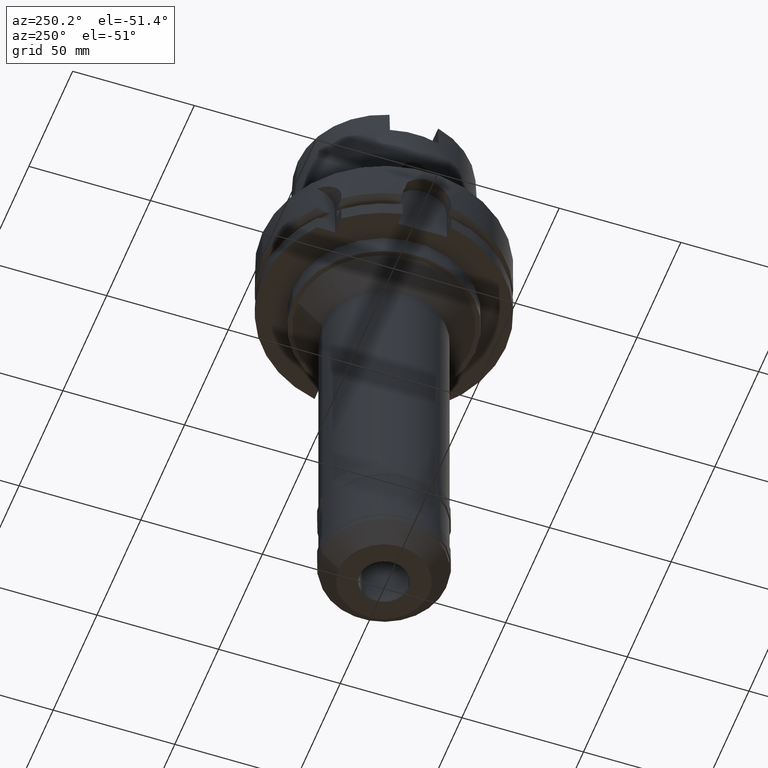
[diagram: clean part render]
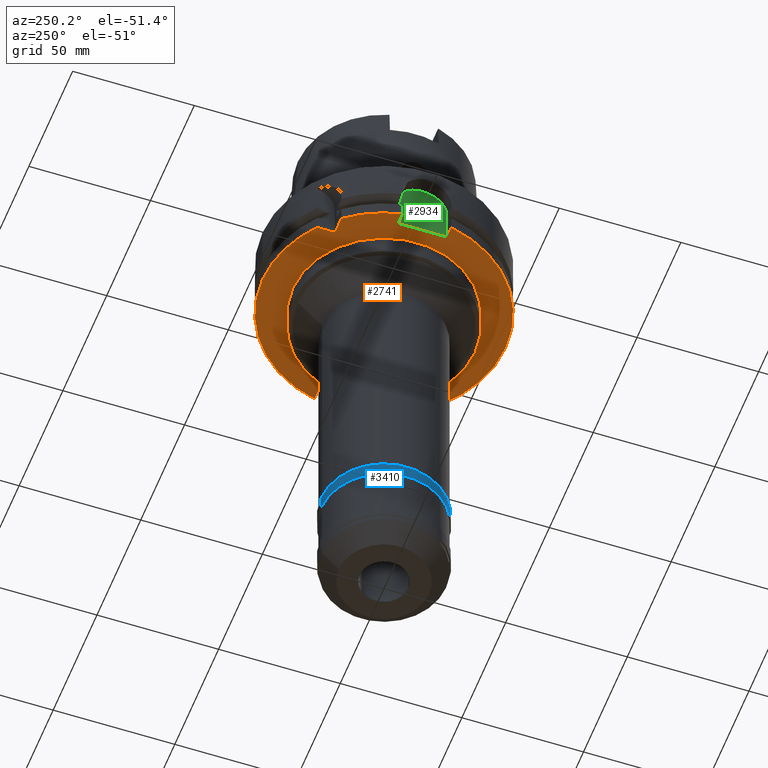
[diagram: same view with three faces highlighted in distinct colors, each labeled with its STEP entity id]
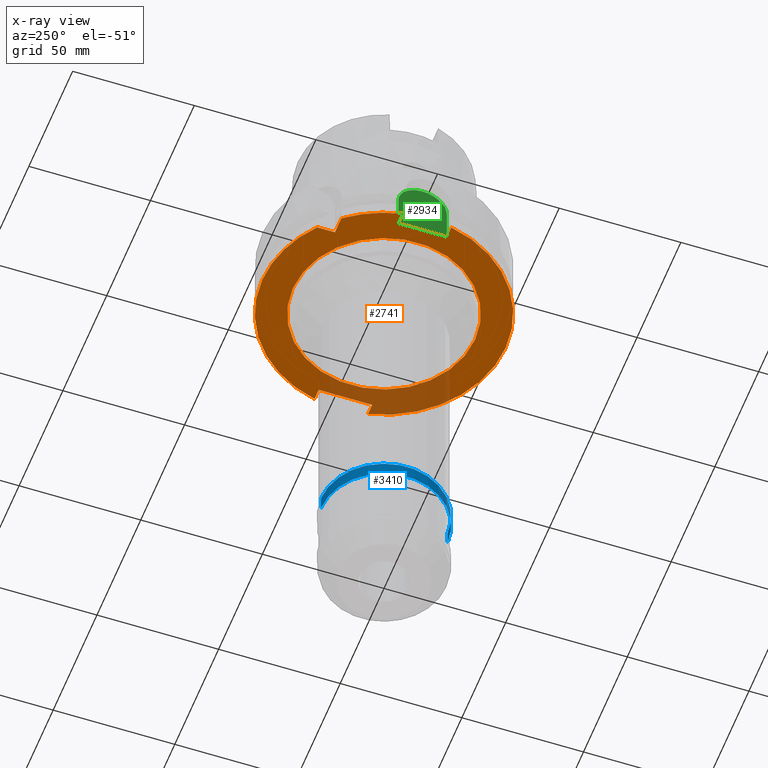
[diagram: x-ray of the same camera — body ghosted, the three highlighted faces saturated]
A machine part, auxiliary view with three faces highlighted in distinct colors.
The next image is the same camera in x-ray (body ghosted, the three faces saturated) — at least one of them is partly hidden behind the body in this view.
Their STEP definitions:

[orange] entity #2741 — the highlighted planar face has unit normal (0, 0, 1).
#428=DIRECTION('',(4.798503851106E-14,1.E0,0.E0));
#429=VECTOR('',#428,7.329756630709E0);
#430=CARTESIAN_POINT('',(-3.15E1,3.15E1,-2.9E1));
#431=LINE('',#430,#429);
#460=DIRECTION('',(-1.E0,-4.798503851106E-14,0.E0));
#461=VECTOR('',#460,7.329756630709E0);
#462=CARTESIAN_POINT('',(-3.15E1,3.15E1,-2.9E1));
#463=LINE('',#462,#461);
#467=CARTESIAN_POINT('',(0.E0,0.E0,-2.9E1));
#468=DIRECTION('',(0.E0,0.E0,1.E0));
#469=DIRECTION('',(-7.765951326142E-1,6.3E-1,0.E0));
#470=AXIS2_PLACEMENT_3D('',#467,#468,#469);
#475=DIRECTION('',(-1.E0,-4.627973610177E-14,0.E0));
#476=VECTOR('',#475,4.989794855662E0);
#477=CARTESIAN_POINT('',(-4.4E1,-1.E1,-2.9E1));
#478=LINE('',#477,#476);
#482=CARTESIAN_POINT('',(0.E0,0.E0,-2.9E1));
#483=DIRECTION('',(0.E0,0.E0,1.E0));
#484=DIRECTION('',(-9.797958971133E-1,-2.E-1,0.E0));
#485=AXIS2_PLACEMENT_3D('',#482,#483,#484);
#490=CARTESIAN_POINT('',(0.E0,0.E0,-2.9E1));
#491=DIRECTION('',(0.E0,0.E0,1.E0));
#492=DIRECTION('',(0.E0,-1.E0,0.E0));
#493=AXIS2_PLACEMENT_3D('',#490,#491,#492);
#498=DIRECTION('',(-1.E0,-1.711257052401E-14,0.E0));
#499=VECTOR('',#498,4.774993593029E0);
#500=CARTESIAN_POINT('',(4.877499359303E1,-1.1E1,-2.9E1));
#501=LINE('',#500,#499);
#505=CARTESIAN_POINT('',(0.E0,0.E0,-2.9E1));
#506=DIRECTION('',(0.E0,0.E0,1.E0));
#507=DIRECTION('',(9.754998718606E-1,2.2E-1,0.E0));
#508=AXIS2_PLACEMENT_3D('',#505,#506,#507);
#513=CARTESIAN_POINT('',(0.E0,0.E0,-2.9E1));
#514=DIRECTION('',(0.E0,0.E0,1.E0));
#515=DIRECTION('',(0.E0,1.E0,0.E0));
#516=AXIS2_PLACEMENT_3D('',#513,#514,#515);
#521=CARTESIAN_POINT('',(0.E0,0.E0,-2.9E1));
#522=DIRECTION('',(0.E0,0.E0,-1.E0));
#523=DIRECTION('',(0.E0,-1.E0,0.E0));
#524=AXIS2_PLACEMENT_3D('',#521,#522,#523);
#529=CARTESIAN_POINT('',(0.E0,0.E0,-2.9E1));
#530=DIRECTION('',(0.E0,0.E0,-1.E0));
#531=DIRECTION('',(0.E0,1.E0,0.E0));
#532=AXIS2_PLACEMENT_3D('',#529,#530,#531);
#586=DIRECTION('',(-1.E0,4.627973610177E-14,0.E0));
#587=VECTOR('',#586,4.989794855662E0);
#588=CARTESIAN_POINT('',(-4.4E1,1.E1,-2.9E1));
#589=LINE('',#588,#587);
#757=DIRECTION('',(0.E0,1.E0,0.E0));
#758=VECTOR('',#757,2.E1);
#759=CARTESIAN_POINT('',(-4.4E1,-1.E1,-2.9E1));
#760=LINE('',#759,#758);
#887=DIRECTION('',(-1.E0,1.785659532940E-14,0.E0));
#888=VECTOR('',#887,4.774993593029E0);
#889=CARTESIAN_POINT('',(4.877499359303E1,1.1E1,-2.9E1));
#890=LINE('',#889,#888);
#901=DIRECTION('',(0.E0,-1.E0,0.E0));
#902=VECTOR('',#901,2.2E1);
#903=CARTESIAN_POINT('',(4.4E1,1.1E1,-2.9E1));
#904=LINE('',#903,#902);
#2185=CARTESIAN_POINT('',(-3.15E1,3.15E1,-2.9E1));
#2186=CARTESIAN_POINT('',(-3.15E1,3.882975663071E1,-2.9E1));
#2187=VERTEX_POINT('',#2185);
#2188=VERTEX_POINT('',#2186);
#2200=CARTESIAN_POINT('',(-3.882975663071E1,3.15E1,-2.9E1));
#2201=VERTEX_POINT('',#2200);
#2202=CARTESIAN_POINT('',(-4.898979485566E1,1.E1,-2.9E1));
#2203=VERTEX_POINT('',#2202);
#2204=CARTESIAN_POINT('',(-4.4E1,1.E1,-2.9E1));
#2205=VERTEX_POINT('',#2204);
#2206=CARTESIAN_POINT('',(-4.4E1,-1.E1,-2.9E1));
#2207=VERTEX_POINT('',#2206);
#2208=CARTESIAN_POINT('',(-4.898979485566E1,-1.E1,-2.9E1));
#2209=VERTEX_POINT('',#2208);
#2210=CARTESIAN_POINT('',(-6.821749291191E-14,-5.E1,-2.9E1));
#2211=CARTESIAN_POINT('',(4.877499359303E1,-1.1E1,-2.9E1));
#2212=VERTEX_POINT('',#2210);
#2213=VERTEX_POINT('',#2211);
#2214=CARTESIAN_POINT('',(4.4E1,-1.1E1,-2.9E1));
#2215=VERTEX_POINT('',#2214);
#2216=CARTESIAN_POINT('',(4.4E1,1.1E1,-2.9E1));
#2217=VERTEX_POINT('',#2216);
#2218=CARTESIAN_POINT('',(4.877499359303E1,1.1E1,-2.9E1));
#2219=VERTEX_POINT('',#2218);
#2220=CARTESIAN_POINT('',(-6.019535474874E-14,5.E1,-2.9E1));
#2221=VERTEX_POINT('',#2220);
#2222=CARTESIAN_POINT('',(0.E0,-3.75E1,-2.9E1));
#2223=CARTESIAN_POINT('',(0.E0,3.75E1,-2.9E1));
#2224=VERTEX_POINT('',#2222);
#2225=VERTEX_POINT('',#2223);
#2703=CARTESIAN_POINT('',(0.E0,0.E0,-2.9E1));
#2704=DIRECTION('',(0.E0,0.E0,1.E0));
#2705=DIRECTION('',(0.E0,1.E0,0.E0));
#2706=AXIS2_PLACEMENT_3D('',#2703,#2704,#2705);
#2707=PLANE('',#2706);
#2708=ORIENTED_EDGE('',*,*,#2681,.F.);
#2710=ORIENTED_EDGE('',*,*,#2709,.T.);
#2712=ORIENTED_EDGE('',*,*,#2711,.T.);
#2714=ORIENTED_EDGE('',*,*,#2713,.F.);
#2716=ORIENTED_EDGE('',*,*,#2715,.F.);
#2718=ORIENTED_EDGE('',*,*,#2717,.T.);
#2720=ORIENTED_EDGE('',*,*,#2719,.T.);
#2722=ORIENTED_EDGE('',*,*,#2721,.T.);
#2724=ORIENTED_EDGE('',*,*,#2723,.T.);
#2726=ORIENTED_EDGE('',*,*,#2725,.F.);
#2728=ORIENTED_EDGE('',*,*,#2727,.F.);
#2730=ORIENTED_EDGE('',*,*,#2729,.T.);
#2732=ORIENTED_EDGE('',*,*,#2731,.T.);
#2733=EDGE_LOOP('',(#2708,#2710,#2712,#2714,#2716,#2718,#2720,#2722,#2724,#2726,
#2728,#2730,#2732));
#2734=FACE_OUTER_BOUND('',#2733,.F.);
#2736=ORIENTED_EDGE('',*,*,#2735,.T.);
#2738=ORIENTED_EDGE('',*,*,#2737,.T.);
#2739=EDGE_LOOP('',(#2736,#2738));
#2740=FACE_BOUND('',#2739,.F.);
#471=CIRCLE('',#470,5.E1);
#486=CIRCLE('',#485,5.E1);
#494=CIRCLE('',#493,5.E1);
#509=CIRCLE('',#508,5.E1);
#517=CIRCLE('',#516,5.E1);
#525=CIRCLE('',#524,3.75E1);
#533=CIRCLE('',#532,3.75E1);
#2681=EDGE_CURVE('',#2187,#2188,#431,.T.);
#2709=EDGE_CURVE('',#2187,#2201,#463,.T.);
#2711=EDGE_CURVE('',#2201,#2203,#471,.T.);
#2713=EDGE_CURVE('',#2205,#2203,#589,.T.);
#2715=EDGE_CURVE('',#2207,#2205,#760,.T.);
#2717=EDGE_CURVE('',#2207,#2209,#478,.T.);
#2719=EDGE_CURVE('',#2209,#2212,#486,.T.);
#2721=EDGE_CURVE('',#2212,#2213,#494,.T.);
#2723=EDGE_CURVE('',#2213,#2215,#501,.T.);
#2725=EDGE_CURVE('',#2217,#2215,#904,.T.);
#2727=EDGE_CURVE('',#2219,#2217,#890,.T.);
#2729=EDGE_CURVE('',#2219,#2221,#509,.T.);
#2731=EDGE_CURVE('',#2221,#2188,#517,.T.);
#2735=EDGE_CURVE('',#2224,#2225,#525,.T.);
#2737=EDGE_CURVE('',#2225,#2224,#533,.T.);
#2741=ADVANCED_FACE('',(#2734,#2740),#2707,.F.);

[blue] entity #3410 — the highlighted cylindrical surface (partial cylindrical patch) has radius 26 mm, axis along (0, 0, 1).
#1381=CARTESIAN_POINT('',(0.E0,0.E0,-1.545E2));
#1382=DIRECTION('',(0.E0,0.E0,-1.E0));
#1383=DIRECTION('',(0.E0,-1.E0,0.E0));
#1384=AXIS2_PLACEMENT_3D('',#1381,#1382,#1383);
#1412=DIRECTION('',(0.E0,0.E0,-1.E0));
#1413=VECTOR('',#1412,6.E0);
#1414=CARTESIAN_POINT('',(0.E0,2.6E1,-1.545E2));
#1415=LINE('',#1414,#1413);
#1419=DIRECTION('',(0.E0,0.E0,-1.E0));
#1420=VECTOR('',#1419,6.E0);
#1421=CARTESIAN_POINT('',(0.E0,-2.6E1,-1.545E2));
#1422=LINE('',#1421,#1420);
#1426=CARTESIAN_POINT('',(0.E0,0.E0,-1.605E2));
#1427=DIRECTION('',(0.E0,0.E0,1.E0));
#1428=DIRECTION('',(0.E0,1.E0,0.E0));
#1429=AXIS2_PLACEMENT_3D('',#1426,#1427,#1428);
#2242=CARTESIAN_POINT('',(0.E0,2.6E1,-1.545E2));
#2243=VERTEX_POINT('',#2242);
#2244=CARTESIAN_POINT('',(0.E0,-2.6E1,-1.545E2));
#2245=VERTEX_POINT('',#2244);
#2246=CARTESIAN_POINT('',(0.E0,2.6E1,-1.605E2));
#2247=VERTEX_POINT('',#2246);
#2248=CARTESIAN_POINT('',(0.E0,-2.6E1,-1.605E2));
#2249=VERTEX_POINT('',#2248);
#3398=CARTESIAN_POINT('',(0.E0,0.E0,-2.0725E2));
#3399=DIRECTION('',(0.E0,0.E0,1.E0));
#3400=DIRECTION('',(0.E0,1.E0,0.E0));
#3401=AXIS2_PLACEMENT_3D('',#3398,#3399,#3400);
#3402=CYLINDRICAL_SURFACE('',#3401,2.6E1);
#3403=ORIENTED_EDGE('',*,*,#3388,.F.);
#3404=ORIENTED_EDGE('',*,*,#3365,.F.);
#3405=ORIENTED_EDGE('',*,*,#3392,.T.);
#3407=ORIENTED_EDGE('',*,*,#3406,.F.);
#3408=EDGE_LOOP('',(#3403,#3404,#3405,#3407));
#3409=FACE_OUTER_BOUND('',#3408,.F.);
#1385=CIRCLE('',#1384,2.6E1);
#1430=CIRCLE('',#1429,2.6E1);
#3365=EDGE_CURVE('',#2245,#2243,#1385,.T.);
#3388=EDGE_CURVE('',#2243,#2247,#1415,.T.);
#3392=EDGE_CURVE('',#2245,#2249,#1422,.T.);
#3406=EDGE_CURVE('',#2247,#2249,#1430,.T.);
#3410=ADVANCED_FACE('',(#3409),#3402,.T.);

[green] entity #2934 — the highlighted planar face has unit normal (1, 0, 0).
#600=DIRECTION('',(0.E0,0.E0,-1.E0));
#601=VECTOR('',#600,1.4E1);
#602=CARTESIAN_POINT('',(-4.4E1,1.E1,-1.5E1));
#603=LINE('',#602,#601);
#743=DIRECTION('',(0.E0,0.E0,1.E0));
#744=VECTOR('',#743,1.4E1);
#745=CARTESIAN_POINT('',(-4.4E1,-1.E1,-2.9E1));
#746=LINE('',#745,#744);
#757=DIRECTION('',(0.E0,1.E0,0.E0));
#758=VECTOR('',#757,2.E1);
#759=CARTESIAN_POINT('',(-4.4E1,-1.E1,-2.9E1));
#760=LINE('',#759,#758);
#764=CARTESIAN_POINT('',(-4.4E1,0.E0,-1.5E1));
#765=DIRECTION('',(1.E0,0.E0,0.E0));
#766=DIRECTION('',(0.E0,1.E0,0.E0));
#767=AXIS2_PLACEMENT_3D('',#764,#765,#766);
#772=CARTESIAN_POINT('',(-4.4E1,0.E0,-1.5E1));
#773=DIRECTION('',(1.E0,0.E0,0.E0));
#774=DIRECTION('',(0.E0,0.E0,1.E0));
#775=AXIS2_PLACEMENT_3D('',#772,#773,#774);
#2204=CARTESIAN_POINT('',(-4.4E1,1.E1,-2.9E1));
#2205=VERTEX_POINT('',#2204);
#2206=CARTESIAN_POINT('',(-4.4E1,-1.E1,-2.9E1));
#2207=VERTEX_POINT('',#2206);
#2350=CARTESIAN_POINT('',(-4.4E1,-1.E1,-1.5E1));
#2351=VERTEX_POINT('',#2350);
#2359=CARTESIAN_POINT('',(-4.4E1,1.E1,-1.5E1));
#2360=VERTEX_POINT('',#2359);
#2361=CARTESIAN_POINT('',(-4.4E1,0.E0,-5.E0));
#2362=VERTEX_POINT('',#2361);
#2922=CARTESIAN_POINT('',(-4.4E1,0.E0,0.E0));
#2923=DIRECTION('',(1.E0,0.E0,0.E0));
#2924=DIRECTION('',(0.E0,0.E0,1.E0));
#2925=AXIS2_PLACEMENT_3D('',#2922,#2923,#2924);
#2926=PLANE('',#2925);
#2927=ORIENTED_EDGE('',*,*,#2715,.T.);
#2928=ORIENTED_EDGE('',*,*,#2812,.F.);
#2929=ORIENTED_EDGE('',*,*,#2891,.T.);
#2930=ORIENTED_EDGE('',*,*,#2889,.T.);
#2931=ORIENTED_EDGE('',*,*,#2903,.F.);
#2932=EDGE_LOOP('',(#2927,#2928,#2929,#2930,#2931));
#2933=FACE_OUTER_BOUND('',#2932,.F.);
#768=CIRCLE('',#767,1.E1);
#776=CIRCLE('',#775,1.E1);
#2715=EDGE_CURVE('',#2207,#2205,#760,.T.);
#2812=EDGE_CURVE('',#2360,#2205,#603,.T.);
#2889=EDGE_CURVE('',#2362,#2351,#776,.T.);
#2891=EDGE_CURVE('',#2360,#2362,#768,.T.);
#2903=EDGE_CURVE('',#2207,#2351,#746,.T.);
#2934=ADVANCED_FACE('',(#2933),#2926,.F.);